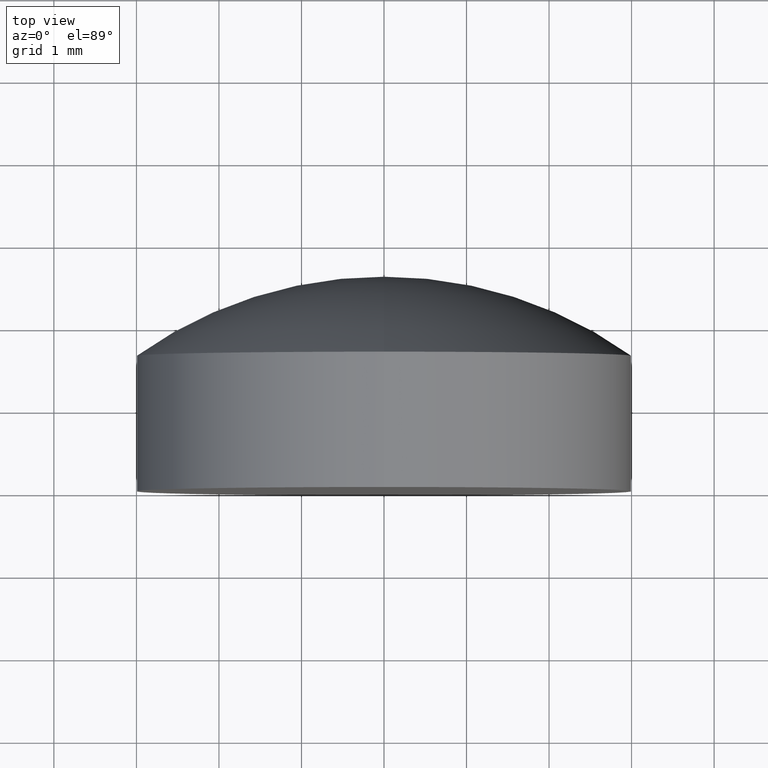
[diagram: clean part render]
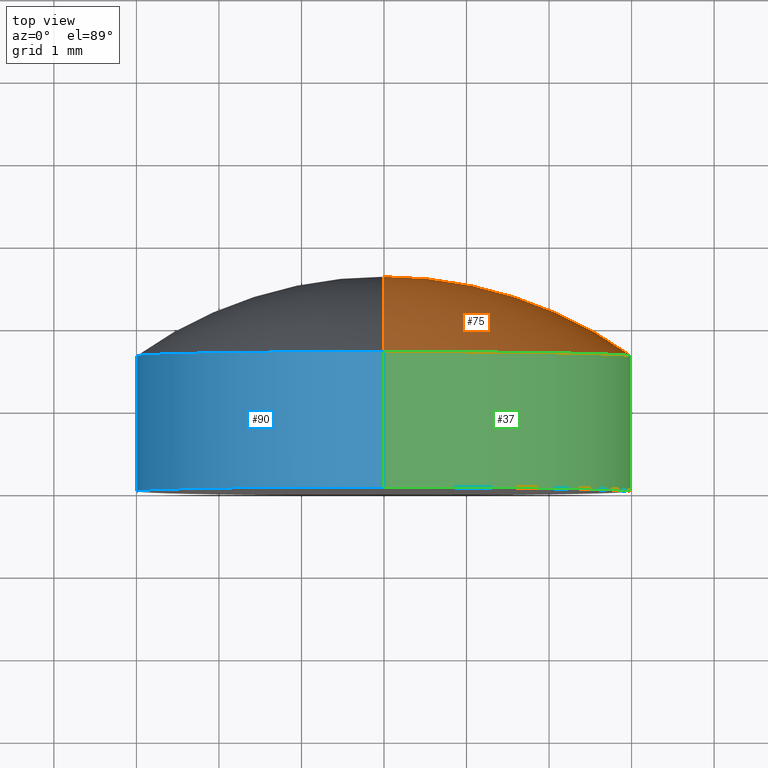
[diagram: same view with three faces highlighted in distinct colors, each labeled with its STEP entity id]
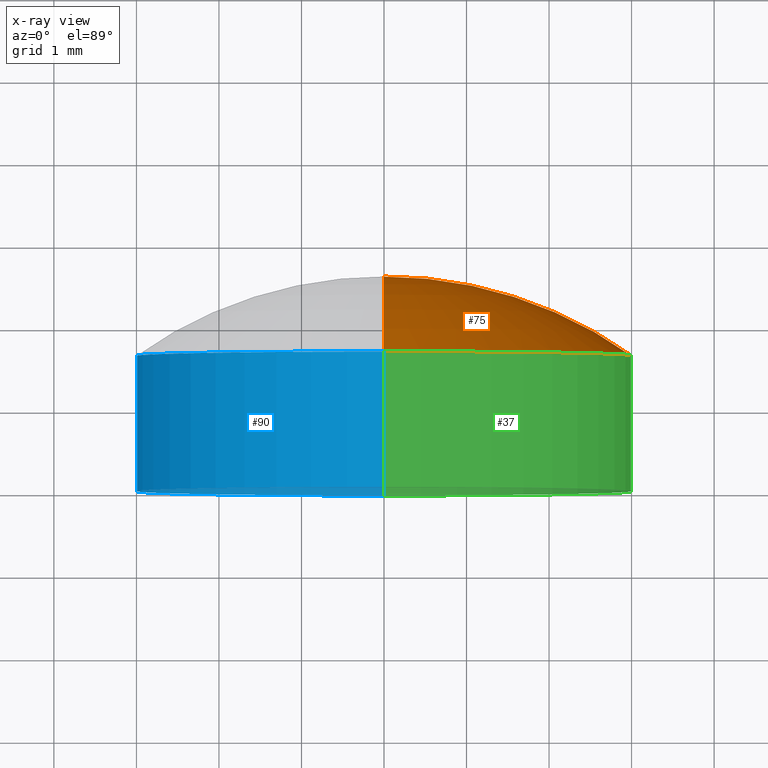
[diagram: x-ray of the same camera — body ghosted, the three highlighted faces saturated]
A machine part, top view with three faces highlighted in distinct colors.
The next image is the same camera in x-ray (body ghosted, the three faces saturated) — at least one of them is partly hidden behind the body in this view.
Their STEP definitions:

[orange] entity #75 — the highlighted toroidal blend (fillet) surface has major radius 0.0008 mm and minor (blend) radius 5.17 mm.
#6 = CIRCLE ( 'NONE', #197, 5.169999999999999929 ) ;
#7 = EDGE_CURVE ( 'NONE', #25, #117, #6, .T. ) ;
#10 = EDGE_LOOP ( 'NONE', ( #124, #176, #89 ) ) ;
#14 = DIRECTION ( 'NONE',  ( -0.000000000000000000, 1.000000000000000000, -0.000000000000000000 ) ) ;
#15 = CARTESIAN_POINT ( 'NONE',  ( -9.796931844589988710E-20, -2.569999938107513593, 0.0007999801944047046226 ) ) ;
#21 = AXIS2_PLACEMENT_3D ( 'NONE', #15, #135, #108 ) ;
#25 = VERTEX_POINT ( 'NONE', #182 ) ;
#28 = EDGE_CURVE ( 'NONE', #25, #146, #44, .T. ) ;
#29 = CARTESIAN_POINT ( 'NONE',  ( 0.000000000000000000, -2.569999938107513593, -0.0007999801944047046226 ) ) ;
#44 = CIRCLE ( 'NONE', #74, 3.000000000000000000 ) ;
#48 = DIRECTION ( 'NONE',  ( 0.000000000000000000, 0.000000000000000000, 1.000000000000000000 ) ) ;
#65 = CIRCLE ( 'NONE', #21, 5.169999999999999929 ) ;
#68 = CARTESIAN_POINT ( 'NONE',  ( 0.000000000000000000, 2.600000000000000089, 0.000000000000000000 ) ) ;
#74 = AXIS2_PLACEMENT_3D ( 'NONE', #107, #14, #48 ) ;
#75 = ADVANCED_FACE ( 'NONE', ( #168 ), #152, .T. ) ;
#77 = DIRECTION ( 'NONE',  ( -1.000000000000000000, 0.000000000000000000, 0.000000000000000000 ) ) ;
#79 = DIRECTION ( 'NONE',  ( -0.000000000000000000, 1.000000000000000000, -0.000000000000000000 ) ) ;
#89 = ORIENTED_EDGE ( 'NONE', *, *, #7, .F. ) ;
#95 = DIRECTION ( 'NONE',  ( 0.000000000000000000, 0.000000000000000000, 1.000000000000000000 ) ) ;
#107 = CARTESIAN_POINT ( 'NONE',  ( 0.000000000000000000, 1.639999999999999458, 0.000000000000000000 ) ) ;
#108 = DIRECTION ( 'NONE',  ( 1.224646799147353207E-16, 0.000000000000000000, -1.000000000000000000 ) ) ;
#117 = VERTEX_POINT ( 'NONE', #68 ) ;
#123 = CARTESIAN_POINT ( 'NONE',  ( 0.000000000000000000, -2.569999938107513593, 0.000000000000000000 ) ) ;
#124 = ORIENTED_EDGE ( 'NONE', *, *, #28, .T. ) ;
#135 = DIRECTION ( 'NONE',  ( 1.000000000000000000, 0.000000000000000000, 1.224646799147353207E-16 ) ) ;
#143 = EDGE_CURVE ( 'NONE', #146, #117, #65, .T. ) ;
#144 = AXIS2_PLACEMENT_3D ( 'NONE', #123, #79, #95 ) ;
#146 = VERTEX_POINT ( 'NONE', #200 ) ;
#152 = TOROIDAL_SURFACE ( 'NONE', #144, -0.0007999801944047046226, 5.169999999999999929 ) ;
#168 = FACE_OUTER_BOUND ( 'NONE', #10, .T. ) ;
#176 = ORIENTED_EDGE ( 'NONE', *, *, #143, .T. ) ;
#182 = CARTESIAN_POINT ( 'NONE',  ( 0.000000000000000000, 1.639999999999999236, 3.000000000000000444 ) ) ;
#183 = DIRECTION ( 'NONE',  ( 0.000000000000000000, 0.000000000000000000, 1.000000000000000000 ) ) ;
#197 = AXIS2_PLACEMENT_3D ( 'NONE', #29, #77, #183 ) ;
#200 = CARTESIAN_POINT ( 'NONE',  ( 3.673940397442060361E-16, 1.639999999999999236, -3.000000000000000444 ) ) ;

[blue] entity #90 — the highlighted cylindrical surface (partial cylindrical patch) has radius 3 mm, axis along (-0, 1, -0).
#8 = ORIENTED_EDGE ( 'NONE', *, *, #201, .F. ) ;
#11 = CYLINDRICAL_SURFACE ( 'NONE', #157, 3.000000000000000000 ) ;
#12 = CIRCLE ( 'NONE', #115, 3.000000000000000000 ) ;
#13 = DIRECTION ( 'NONE',  ( 0.000000000000000000, 0.000000000000000000, 1.000000000000000000 ) ) ;
#25 = VERTEX_POINT ( 'NONE', #182 ) ;
#30 = CARTESIAN_POINT ( 'NONE',  ( 0.000000000000000000, 1.639999999999999458, 0.000000000000000000 ) ) ;
#31 = ORIENTED_EDGE ( 'NONE', *, *, #80, .T. ) ;
#35 = VECTOR ( 'NONE', #199, 1000.000000000000000 ) ;
#43 = ORIENTED_EDGE ( 'NONE', *, *, #114, .F. ) ;
#46 = CARTESIAN_POINT ( 'NONE',  ( 0.000000000000000000, -4.336808689942017736E-16, 0.000000000000000000 ) ) ;
#47 = AXIS2_PLACEMENT_3D ( 'NONE', #46, #138, #105 ) ;
#51 = CARTESIAN_POINT ( 'NONE',  ( 3.673940397442059868E-16, -4.336808689942017736E-16, -3.000000000000000000 ) ) ;
#63 = LINE ( 'NONE', #154, #128 ) ;
#64 = VERTEX_POINT ( 'NONE', #51 ) ;
#76 = DIRECTION ( 'NONE',  ( 0.000000000000000000, 0.000000000000000000, 1.000000000000000000 ) ) ;
#80 = EDGE_CURVE ( 'NONE', #88, #25, #63, .T. ) ;
#88 = VERTEX_POINT ( 'NONE', #120 ) ;
#90 = ADVANCED_FACE ( 'NONE', ( #134 ), #11, .T. ) ;
#91 = DIRECTION ( 'NONE',  ( -0.000000000000000000, 1.000000000000000000, -0.000000000000000000 ) ) ;
#93 = CARTESIAN_POINT ( 'NONE',  ( 3.673940397442059868E-16, 2.600000000000000089, -3.000000000000000000 ) ) ;
#105 = DIRECTION ( 'NONE',  ( 0.000000000000000000, 0.000000000000000000, 1.000000000000000000 ) ) ;
#106 = DIRECTION ( 'NONE',  ( -0.000000000000000000, 1.000000000000000000, -0.000000000000000000 ) ) ;
#114 = EDGE_CURVE ( 'NONE', #64, #146, #166, .T. ) ;
#115 = AXIS2_PLACEMENT_3D ( 'NONE', #30, #91, #13 ) ;
#118 = EDGE_CURVE ( 'NONE', #64, #88, #119, .T. ) ;
#119 = CIRCLE ( 'NONE', #47, 3.000000000000000000 ) ;
#120 = CARTESIAN_POINT ( 'NONE',  ( 0.000000000000000000, -4.336808689942017736E-16, 3.000000000000000000 ) ) ;
#128 = VECTOR ( 'NONE', #186, 1000.000000000000000 ) ;
#129 = ORIENTED_EDGE ( 'NONE', *, *, #118, .T. ) ;
#134 = FACE_OUTER_BOUND ( 'NONE', #163, .T. ) ;
#138 = DIRECTION ( 'NONE',  ( -0.000000000000000000, 1.000000000000000000, -0.000000000000000000 ) ) ;
#146 = VERTEX_POINT ( 'NONE', #200 ) ;
#154 = CARTESIAN_POINT ( 'NONE',  ( 0.000000000000000000, 2.600000000000000089, 3.000000000000000000 ) ) ;
#157 = AXIS2_PLACEMENT_3D ( 'NONE', #188, #106, #76 ) ;
#163 = EDGE_LOOP ( 'NONE', ( #43, #129, #31, #8 ) ) ;
#166 = LINE ( 'NONE', #93, #35 ) ;
#182 = CARTESIAN_POINT ( 'NONE',  ( 0.000000000000000000, 1.639999999999999236, 3.000000000000000444 ) ) ;
#186 = DIRECTION ( 'NONE',  ( -0.000000000000000000, 1.000000000000000000, -0.000000000000000000 ) ) ;
#188 = CARTESIAN_POINT ( 'NONE',  ( 0.000000000000000000, 2.600000000000000089, 0.000000000000000000 ) ) ;
#199 = DIRECTION ( 'NONE',  ( -0.000000000000000000, 1.000000000000000000, -0.000000000000000000 ) ) ;
#200 = CARTESIAN_POINT ( 'NONE',  ( 3.673940397442060361E-16, 1.639999999999999236, -3.000000000000000444 ) ) ;
#201 = EDGE_CURVE ( 'NONE', #146, #25, #12, .T. ) ;

[green] entity #37 — the highlighted cylindrical surface (partial cylindrical patch) has radius 3 mm, axis along (-0, 1, -0).
#1 = CYLINDRICAL_SURFACE ( 'NONE', #17, 3.000000000000000000 ) ;
#14 = DIRECTION ( 'NONE',  ( -0.000000000000000000, 1.000000000000000000, -0.000000000000000000 ) ) ;
#17 = AXIS2_PLACEMENT_3D ( 'NONE', #184, #150, #151 ) ;
#25 = VERTEX_POINT ( 'NONE', #182 ) ;
#28 = EDGE_CURVE ( 'NONE', #25, #146, #44, .T. ) ;
#35 = VECTOR ( 'NONE', #199, 1000.000000000000000 ) ;
#37 = ADVANCED_FACE ( 'NONE', ( #122 ), #1, .T. ) ;
#44 = CIRCLE ( 'NONE', #74, 3.000000000000000000 ) ;
#48 = DIRECTION ( 'NONE',  ( 0.000000000000000000, 0.000000000000000000, 1.000000000000000000 ) ) ;
#49 = DIRECTION ( 'NONE',  ( -0.000000000000000000, 1.000000000000000000, -0.000000000000000000 ) ) ;
#51 = CARTESIAN_POINT ( 'NONE',  ( 3.673940397442059868E-16, -4.336808689942017736E-16, -3.000000000000000000 ) ) ;
#63 = LINE ( 'NONE', #154, #128 ) ;
#64 = VERTEX_POINT ( 'NONE', #51 ) ;
#66 = CARTESIAN_POINT ( 'NONE',  ( 0.000000000000000000, -4.336808689942017736E-16, 0.000000000000000000 ) ) ;
#73 = ORIENTED_EDGE ( 'NONE', *, *, #28, .F. ) ;
#74 = AXIS2_PLACEMENT_3D ( 'NONE', #107, #14, #48 ) ;
#80 = EDGE_CURVE ( 'NONE', #88, #25, #63, .T. ) ;
#87 = AXIS2_PLACEMENT_3D ( 'NONE', #66, #49, #165 ) ;
#88 = VERTEX_POINT ( 'NONE', #120 ) ;
#93 = CARTESIAN_POINT ( 'NONE',  ( 3.673940397442059868E-16, 2.600000000000000089, -3.000000000000000000 ) ) ;
#103 = ORIENTED_EDGE ( 'NONE', *, *, #181, .T. ) ;
#107 = CARTESIAN_POINT ( 'NONE',  ( 0.000000000000000000, 1.639999999999999458, 0.000000000000000000 ) ) ;
#114 = EDGE_CURVE ( 'NONE', #64, #146, #166, .T. ) ;
#120 = CARTESIAN_POINT ( 'NONE',  ( 0.000000000000000000, -4.336808689942017736E-16, 3.000000000000000000 ) ) ;
#121 = ORIENTED_EDGE ( 'NONE', *, *, #80, .F. ) ;
#122 = FACE_OUTER_BOUND ( 'NONE', #169, .T. ) ;
#128 = VECTOR ( 'NONE', #186, 1000.000000000000000 ) ;
#145 = ORIENTED_EDGE ( 'NONE', *, *, #114, .T. ) ;
#146 = VERTEX_POINT ( 'NONE', #200 ) ;
#150 = DIRECTION ( 'NONE',  ( -0.000000000000000000, 1.000000000000000000, -0.000000000000000000 ) ) ;
#151 = DIRECTION ( 'NONE',  ( 0.000000000000000000, 0.000000000000000000, 1.000000000000000000 ) ) ;
#154 = CARTESIAN_POINT ( 'NONE',  ( 0.000000000000000000, 2.600000000000000089, 3.000000000000000000 ) ) ;
#165 = DIRECTION ( 'NONE',  ( 0.000000000000000000, 0.000000000000000000, 1.000000000000000000 ) ) ;
#166 = LINE ( 'NONE', #93, #35 ) ;
#169 = EDGE_LOOP ( 'NONE', ( #103, #145, #73, #121 ) ) ;
#173 = CIRCLE ( 'NONE', #87, 3.000000000000000000 ) ;
#181 = EDGE_CURVE ( 'NONE', #88, #64, #173, .T. ) ;
#182 = CARTESIAN_POINT ( 'NONE',  ( 0.000000000000000000, 1.639999999999999236, 3.000000000000000444 ) ) ;
#184 = CARTESIAN_POINT ( 'NONE',  ( 0.000000000000000000, 2.600000000000000089, 0.000000000000000000 ) ) ;
#186 = DIRECTION ( 'NONE',  ( -0.000000000000000000, 1.000000000000000000, -0.000000000000000000 ) ) ;
#199 = DIRECTION ( 'NONE',  ( -0.000000000000000000, 1.000000000000000000, -0.000000000000000000 ) ) ;
#200 = CARTESIAN_POINT ( 'NONE',  ( 3.673940397442060361E-16, 1.639999999999999236, -3.000000000000000444 ) ) ;